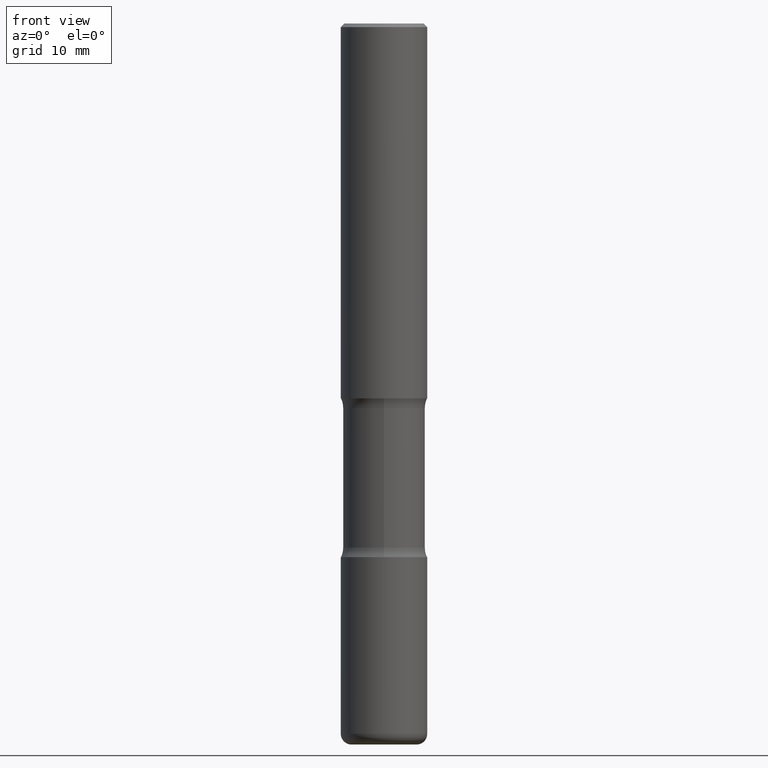
[diagram: clean part render]
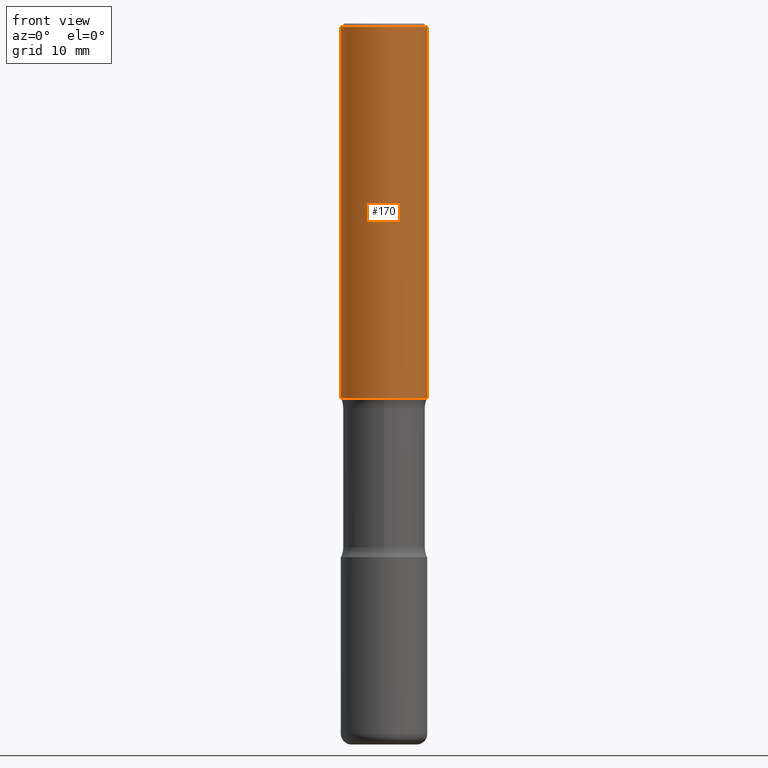
[diagram: same view with one face highlighted and labeled with its STEP entity id]
A machine part, front view. The second image highlights one B-rep face of the part: STEP entity #170.
In plain terms, the highlighted cylindrical surface (partial cylindrical patch) has radius 5.9995 mm, axis along (-0, 0, 1).
Its self-contained STEP definition (entity closure, byte-faithful):
#1 = CARTESIAN_POINT ( 'NONE',  ( -0.2362000000000001598, -1.930493169962915017E-15, -2.047200000000000131 ) ) ;
#11 = CIRCLE ( 'NONE', #404, 0.2361999999999998823 ) ;
#12 = DIRECTION ( 'NONE',  ( -2.445468806185136597E-29, 3.491481338843145583E-15, 1.000000000000000000 ) ) ;
#34 = DIRECTION ( 'NONE',  ( 1.000000000000000000, -6.982962677686266711E-15, 4.876176775795936353E-29 ) ) ;
#68 = VERTEX_POINT ( 'NONE', #282 ) ;
#91 = VECTOR ( 'NONE', #136, 39.37007874015748143 ) ;
#108 = VECTOR ( 'NONE', #420, 39.37007874015748143 ) ;
#125 = ORIENTED_EDGE ( 'NONE', *, *, #538, .T. ) ;
#128 = CARTESIAN_POINT ( 'NONE',  ( -0.2361999999999999933, 1.678301941865356591E-15, -1.161852468318208757E-29 ) ) ;
#134 = ORIENTED_EDGE ( 'NONE', *, *, #391, .F. ) ;
#136 = DIRECTION ( 'NONE',  ( -2.445468806185136877E-29, 3.491481338843145188E-15, 1.000000000000000000 ) ) ;
#159 = ORIENTED_EDGE ( 'NONE', *, *, #354, .T. ) ;
#161 = CARTESIAN_POINT ( 'NONE',  ( 0.2362000000000001321, -8.797136381349186305E-15, -2.047200000000000131 ) ) ;
#162 = VERTEX_POINT ( 'NONE', #1 ) ;
#170 = ADVANCED_FACE ( 'NONE', ( #386 ), #263, .T. ) ;
#178 = LINE ( 'NONE', #128, #91 ) ;
#183 = AXIS2_PLACEMENT_3D ( 'NONE', #427, #258, #34 ) ;
#187 = CARTESIAN_POINT ( 'NONE',  ( 5.006363740022212241E-29, -7.147760596879688202E-15, -2.047200000000000131 ) ) ;
#191 = LINE ( 'NONE', #409, #108 ) ;
#225 = VERTEX_POINT ( 'NONE', #433 ) ;
#248 = ORIENTED_EDGE ( 'NONE', *, *, #492, .F. ) ;
#258 = DIRECTION ( 'NONE',  ( -2.445468806185136597E-29, 3.491481338843145583E-15, 1.000000000000000000 ) ) ;
#263 = CYLINDRICAL_SURFACE ( 'NONE', #183, 0.2361999999999999933 ) ;
#266 = EDGE_LOOP ( 'NONE', ( #134, #159, #125, #248 ) ) ;
#282 = CARTESIAN_POINT ( 'NONE',  ( 0.2361999999999998823, -1.690279253850498179E-15, -0.02000000000000006981 ) ) ;
#352 = DIRECTION ( 'NONE',  ( 1.000000000000000000, -6.982962677686269077E-15, 0.000000000000000000 ) ) ;
#354 = EDGE_CURVE ( 'NONE', #162, #483, #454, .T. ) ;
#362 = DIRECTION ( 'NONE',  ( -2.445468806185136597E-29, 3.491481338843145583E-15, 1.000000000000000000 ) ) ;
#386 = FACE_OUTER_BOUND ( 'NONE', #266, .T. ) ;
#391 = EDGE_CURVE ( 'NONE', #162, #225, #178, .T. ) ;
#404 = AXIS2_PLACEMENT_3D ( 'NONE', #432, #362, #531 ) ;
#409 = CARTESIAN_POINT ( 'NONE',  ( 0.2361999999999999933, -1.649375784469496131E-15, 1.151752954443000088E-29 ) ) ;
#420 = DIRECTION ( 'NONE',  ( -2.445468806185136877E-29, 3.491481338843145188E-15, 1.000000000000000000 ) ) ;
#427 = CARTESIAN_POINT ( 'NONE',  ( 0.000000000000000000, 0.000000000000000000, 0.000000000000000000 ) ) ;
#432 = CARTESIAN_POINT ( 'NONE',  ( 4.890937612370289799E-31, -6.982962677686315028E-17, -0.02000000000000006981 ) ) ;
#433 = CARTESIAN_POINT ( 'NONE',  ( -0.2361999999999998823, 1.579546157692632438E-15, -0.02000000000000006981 ) ) ;
#454 = CIRCLE ( 'NONE', #471, 0.2362000000000001321 ) ;
#471 = AXIS2_PLACEMENT_3D ( 'NONE', #187, #12, #352 ) ;
#483 = VERTEX_POINT ( 'NONE', #161 ) ;
#492 = EDGE_CURVE ( 'NONE', #225, #68, #11, .T. ) ;
#531 = DIRECTION ( 'NONE',  ( 1.000000000000000000, -6.982962677686267499E-15, 0.000000000000000000 ) ) ;
#538 = EDGE_CURVE ( 'NONE', #483, #68, #191, .T. ) ;